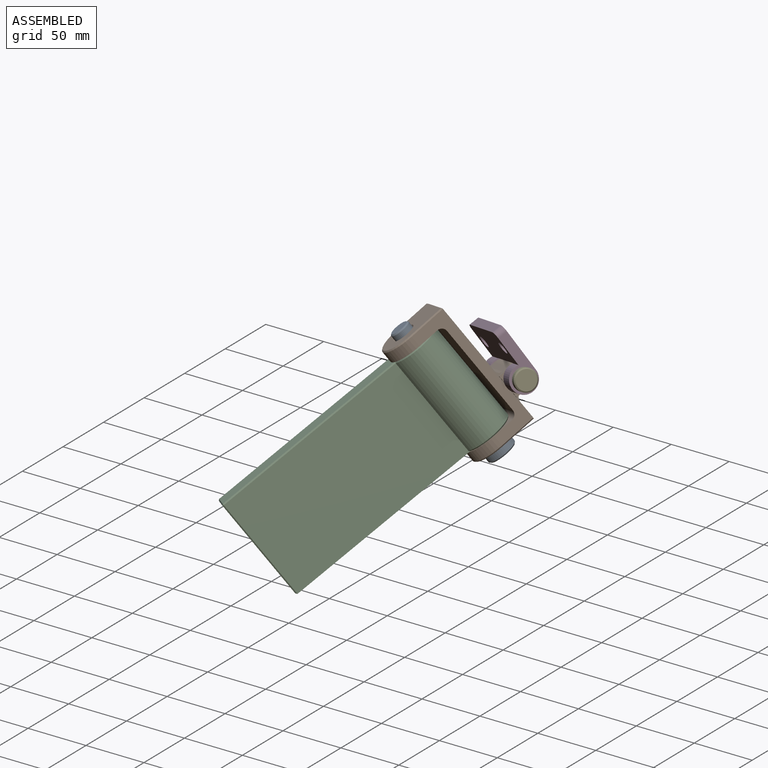
[diagram: assembled view]
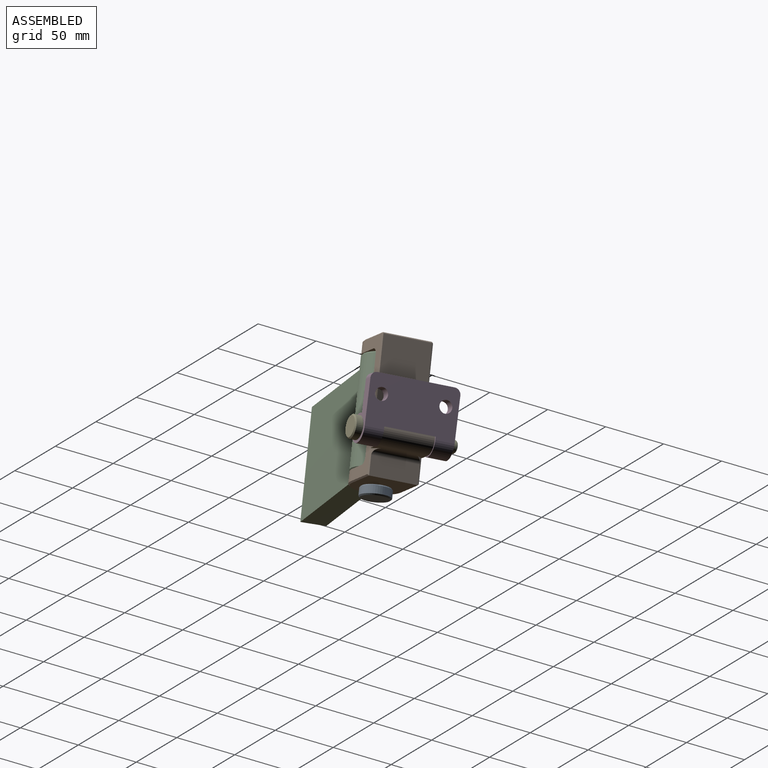
[diagram: assembled view, second angle]
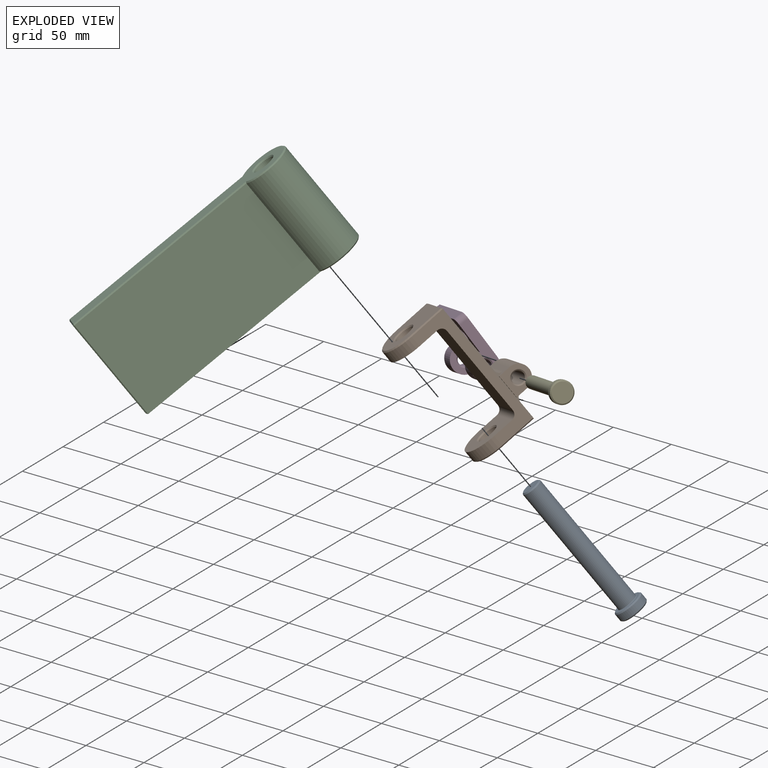
[diagram: exploded view]
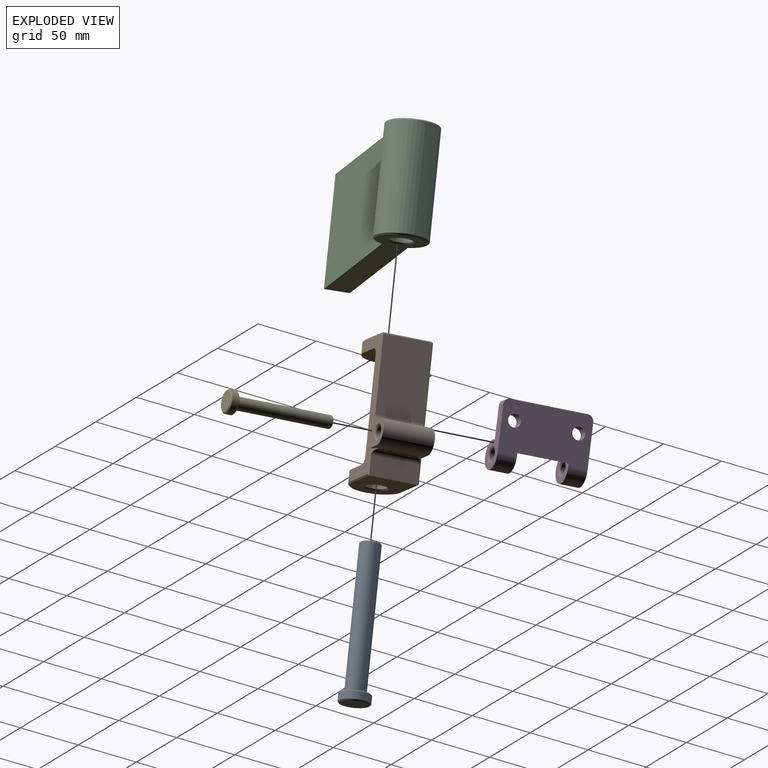
[diagram: exploded view, second angle]
ASSEMBLY  parts=5 mates=4
PART A: 9 faces, bbox 118x24x24 mm
  f0: plane 14x14mm, normal (-1,0,0), area 153.9mm2, adj f7
  f1: plane 22x22mm, normal (1,0,0), area 380.1mm2, adj f5
  f2: cylinder r=12mm len=24mm, axis (1,0,0), area 452.4mm2, adj f5,f6
  f3: plane 22x22mm, normal (-1,0,0), area 153.2mm2, adj f6,f8
  f4: cylinder r=8mm len=108.5mm, axis (1,0,0), area 5453.8mm2, adj f7,f8
  f5: cone r=11mm half-angle=45deg, axis (-1,0,0), area 102.2mm2, adj f1,f2
  f6: cone r=12mm half-angle=45deg, axis (1,0,0), area 102.2mm2, adj f2,f3
  f7: cone r=8mm half-angle=45deg, axis (1,0,0), area 66.6mm2, adj f0,f4
  f8: torus R=8.5mm, axis (1,0,0), area 40.4mm2, adj f3,f4
PART B: 42 faces, bbox 40x105x70 mm
  f0: plane 59x38mm, normal (0,0,-1), area 2242mm2, adj f20,f24,f29,f39
  f1: cylinder r=8mm len=16mm, axis (0,1,0), area 402.1mm2, adj f14,f15
  f2: plane 103x29mm, normal (-1,0,0), area 1127.7mm2, adj f8,f9,f10,f11,f12,f13,f18,f19
  f3: plane 38x15mm, normal (0,0,-1), area 570mm2, adj f7,f20,f29,f38
  f4: plane 103x29mm, normal (1,0,0), area 1127.7mm2, adj f8,f9,f10,f11,f12,f13,f18,f25
  f5: cylinder r=8mm len=16mm, axis (0,1,0), area 402.1mm2, adj f16,f17
  f6: plane 48x38mm, normal (0,-1,0), area 1414.6mm2, adj f14,f19,f22,f24,f25
  f7: plane 49x38mm, normal (0,1,0), area 1452.6mm2, adj f3,f16,f23,f26,f28
  f8: plane 40x37mm, normal (0,1,0), area 1053.8mm2, adj f2,f4,f12,f15,f18
  f9: plane 75x40mm, normal (0,0,1), area 3000mm2, adj f2,f4,f13,f18
  f10: plane 40x37mm, normal (0,-1,0), area 1053.8mm2, adj f2,f4,f11,f13,f17
  f11: cylinder r=20mm len=40mm, axis (0,1,0), area 565.5mm2, adj f2,f4,f10,f26
  f12: cylinder r=20mm len=40mm, axis (0,1,0), area 565.5mm2, adj f2,f4,f8,f22
  f13: cylinder r=5mm len=40mm, axis (-1,0,0), area 314.2mm2, adj f2,f4,f9,f10
  f14: cone r=8mm half-angle=45deg, axis (0,-1,0), area 75.5mm2, adj f1,f6
  f15: cone r=9mm half-angle=45deg, axis (0,1,0), area 75.5mm2, adj f1,f8
  f16: cone r=9mm half-angle=45deg, axis (0,1,0), area 75.5mm2, adj f5,f7
  f17: cone r=9mm half-angle=45deg, axis (0,-1,0), area 75.5mm2, adj f5,f10
  f18: cylinder r=5mm len=40mm, axis (-1,0,0), area 314.2mm2, adj f2,f4,f8,f9
  f19: plane 29x1mm, normal (-0.71,-0.71,0), area 41mm2, adj f2,f6,f21,f22
  f20: plane 104x6mm, normal (-0.71,0,-0.71), area 161.5mm2, adj f0,f2,f3,f21,f23,f31,f32,f33
  f21: plane 1x1mm, normal (-0.58,-0.58,-0.58), area 0.9mm2, adj f19,f20,f24
  f22: cone r=19mm half-angle=45deg, axis (0,1,0), area 86.6mm2, adj f6,f12,f19,f25
  f23: plane 30x1mm, normal (-0.71,0.71,0), area 41.7mm2, adj f2,f7,f20,f26
  f24: plane 38x1mm, normal (0,-0.71,-0.71), area 53.7mm2, adj f0,f6,f21,f27
  f25: plane 29x1mm, normal (0.71,-0.71,0), area 41mm2, adj f4,f6,f22,f27
  f26: cone r=19mm half-angle=45deg, axis (0,-1,0), area 86.6mm2, adj f7,f11,f23,f28
  f27: plane 1x1mm, normal (0.58,-0.58,-0.58), area 0.9mm2, adj f24,f25,f29
  f28: plane 30x1mm, normal (0.71,0.71,0), area 41.7mm2, adj f4,f7,f26,f29
  f29: plane 104x6mm, normal (0.71,0,-0.71), area 161.5mm2, adj f0,f3,f4,f27,f28,f30,f32,f33
  f30: plane 20x1mm, normal (0,0,1), area 20mm2, adj f29,f32,f33,f37
  f31: plane 20x1mm, normal (0,0,1), area 20mm2, adj f20,f32,f33,f36
  f32: plane 40x10mm, normal (0,1,0), area 235mm2, adj f20,f29,f30,f31,f35,f36,f37,f38
  f33: plane 40x10mm, normal (0,-1,0), area 235mm2, adj f20,f29,f30,f31,f35,f36,f37,f39
  f34: cylinder r=5mm len=38mm, axis (1,0,0), area 1193.8mm2, adj f40,f41
  f35: cylinder r=10mm len=40mm, axis (1,0,0), area 1256.6mm2, adj f32,f33,f36,f37
  f36: plane 20x20mm, normal (-1,0,0), area 244mm2, adj f31,f32,f33,f35,f40
  f37: plane 20x20mm, normal (1,0,0), area 244mm2, adj f30,f32,f33,f35,f41
  f38: cylinder r=5mm len=38mm, axis (-1,0,0), area 269.9mm2, adj f3,f20,f29,f32
  f39: cylinder r=5mm len=38mm, axis (-1,0,0), area 269.9mm2, adj f0,f20,f29,f33
  f40: cone r=6mm half-angle=45deg, axis (-1,0,0), area 48.9mm2, adj f34,f36
  f41: cone r=5mm half-angle=45deg, axis (1,0,0), area 48.9mm2, adj f34,f37
PART C: 21 faces, bbox 196.6x85x40.4 mm
  f0: cylinder r=20.21mm len=83mm, axis (0,1,0), area 8797.2mm2, adj f1,f3,f7,f12
  f1: plane 158.78x84.02mm, normal (0,0,-1), area 13240mm2, adj f0,f4,f7,f15,f18
  f2: cylinder r=8.63mm len=83mm, axis (0,1,0), area 4498.9mm2, adj f19,f20
  f3: plane 157.96x83mm, normal (0,0,1), area 13110.4mm2, adj f0,f8,f9,f10
  f4: plane 194.54x38.42mm, normal (0,-1,0), area 3857.9mm2, adj f1,f7,f9,f16,f20
  f5: plane 194.54x38.42mm, normal (0,1,0), area 3699.4mm2, adj f8,f12,f14,f15,f19
  f6: plane 83x18.05mm, normal (1,0,0), area 1498.3mm2, adj f10,f14,f16,f18
  f7: cone r=19.21mm half-angle=45deg, axis (0,1,0), area 146.2mm2, adj f0,f1,f4,f9
  f8: plane 158.55x1.01mm, normal (0,0.71,0.71), area 223.8mm2, adj f3,f5,f11,f12
  f9: plane 158.55x1.01mm, normal (0,-0.71,0.71), area 223.8mm2, adj f3,f4,f7,f13
  f10: plane 83x1mm, normal (0.71,0,0.71), area 117.4mm2, adj f3,f6,f11,f13
  f11: plane 1x1mm, normal (0.58,0.58,0.58), area 0.9mm2, adj f8,f10,f14
  f12: cone r=20.21mm half-angle=45deg, axis (0,-1,0), area 147mm2, adj f0,f5,f8,f15
  f13: plane 1x1mm, normal (0.58,-0.58,0.58), area 0.9mm2, adj f9,f10,f16
  f14: plane 18.05x1mm, normal (0.71,0.71,0), area 25.5mm2, adj f5,f6,f11,f17
  f15: plane 158.23x1.01mm, normal (0,0.71,-0.71), area 223.3mm2, adj f1,f5,f12,f17
  f16: plane 19.05x1mm, normal (0.71,-0.71,0), area 26.2mm2, adj f4,f6,f13,f18
  f17: plane 1x1mm, normal (0.58,0.58,-0.58), area 0.9mm2, adj f14,f15,f18
  f18: plane 84x1mm, normal (0.71,0,-0.71), area 118.1mm2, adj f1,f6,f16,f17
  f19: cone r=9.63mm half-angle=45deg, axis (0,1,0), area 81.1mm2, adj f2,f5
  f20: cone r=8.63mm half-angle=45deg, axis (0,-1,0), area 81.1mm2, adj f2,f4
PART D: 20 faces, bbox 70x22x51 mm
  f0: cylinder r=11mm len=22mm, axis (-1,0,0), area 823.1mm2, adj f3,f6,f8,f11
  f1: cylinder r=5mm len=13mm, axis (-1,0,0), area 408.4mm2, adj f17,f18
  f2: cylinder r=11mm len=22mm, axis (-1,0,0), area 823.1mm2, adj f3,f6,f7,f10
  f3: plane 70x29.42mm, normal (0,-1,0), area 1881mm2, adj f0,f2,f4,f7,f8,f9,f10,f11
  f4: plane 60x8mm, normal (0,0,-1), area 480mm2, adj f3,f6,f14,f15
  f5: cylinder r=5mm len=13mm, axis (-1,0,0), area 408.4mm2, adj f16,f19
  f6: plane 70x40mm, normal (0,1,0), area 2537.9mm2, adj f0,f2,f4,f7,f8,f9,f10,f11
  f7: plane 46x22mm, normal (1,0,0), area 484.6mm2, adj f2,f3,f6,f15,f16
  f8: plane 46x22mm, normal (-1,0,0), area 484.6mm2, adj f0,f3,f6,f14,f18
  f9: cylinder r=11.25mm len=40mm, axis (-1,0,0), area 490.3mm2, adj f3,f6,f10,f11
  f10: plane 22x22mm, normal (-1,0,0), area 270.3mm2, adj f2,f3,f6,f9,f19
  f11: plane 22x22mm, normal (1,0,0), area 270.3mm2, adj f0,f3,f6,f9,f17
  f12: cylinder r=5mm len=10mm, axis (0,-1,0), area 251.3mm2, adj f3,f6
  f13: cylinder r=5mm len=10mm, axis (0,-1,0), area 251.3mm2, adj f3,f6
  f14: cylinder r=5mm len=8mm, axis (0,1,0), area 62.8mm2, adj f3,f4,f6,f8
  f15: cylinder r=5mm len=8mm, axis (0,-1,0), area 62.8mm2, adj f3,f4,f6,f7
  f16: cone r=5mm half-angle=45deg, axis (1,0,0), area 48.9mm2, adj f5,f7
  f17: cone r=5mm half-angle=45deg, axis (1,0,0), area 48.9mm2, adj f1,f11
  f18: cone r=6mm half-angle=45deg, axis (-1,0,0), area 48.9mm2, adj f1,f8
  f19: cone r=6mm half-angle=45deg, axis (-1,0,0), area 48.9mm2, adj f5,f10
PART E: 9 faces, bbox 82x18x18 mm
  f0: plane 8x8mm, normal (-1,0,0), area 50.3mm2, adj f7
  f1: plane 16x16mm, normal (1,0,0), area 201.1mm2, adj f5
  f2: cylinder r=9mm len=18mm, axis (1,0,0), area 282.7mm2, adj f5,f6
  f3: plane 16x16mm, normal (-1,0,0), area 106mm2, adj f6,f8
  f4: cylinder r=5mm len=73.5mm, axis (1,0,0), area 2309.1mm2, adj f7,f8
  f5: cone r=8mm half-angle=45deg, axis (-1,0,0), area 75.5mm2, adj f1,f2
  f6: cone r=9mm half-angle=45deg, axis (1,0,0), area 75.5mm2, adj f2,f3
  f7: cone r=5mm half-angle=45deg, axis (1,0,0), area 40mm2, adj f0,f4
  f8: torus R=5.5mm, axis (1,0,0), area 25.6mm2, adj f3,f4
PLACE A rot(axis=(-0.58,0.61,0.54),69.7deg) t=(-26.59,-27.88,368.38)mm
PLACE B rot(axis=(-0.36,-0.8,0.48),178.3deg) t=(-15.57,-22.5,353.18)mm
PLACE C rot(axis=(0.51,-0.6,-0.62),175.8deg) t=(-39.55,-34.21,386.26)mm
PLACE D rot(axis=(0.28,0.94,0.21),152.3deg) t=(11.98,13.99,357.17)mm
PLACE E rot(axis=(-0.63,-0.14,-0.76),55.8deg) t=(10.12,15.48,356.35)mm
MATE revolute E.f2 <-> D.f1  axis (0.74,-0.59,0.32) through (37.05,-6.15,368.21)mm
MATE revolute B.f34 <-> D.f1  axis (-0.74,0.59,-0.32) through (-2.76,25.83,350.67)mm
MATE revolute C.f2 <-> B.f1  axis (-0.56,-0.28,0.78) through (-39.55,-34.21,386.26)mm
MATE fastened A.f2 <-> B.f1  axis (-0.56,-0.28,0.78) through (14.04,-8.03,312.32)mm
